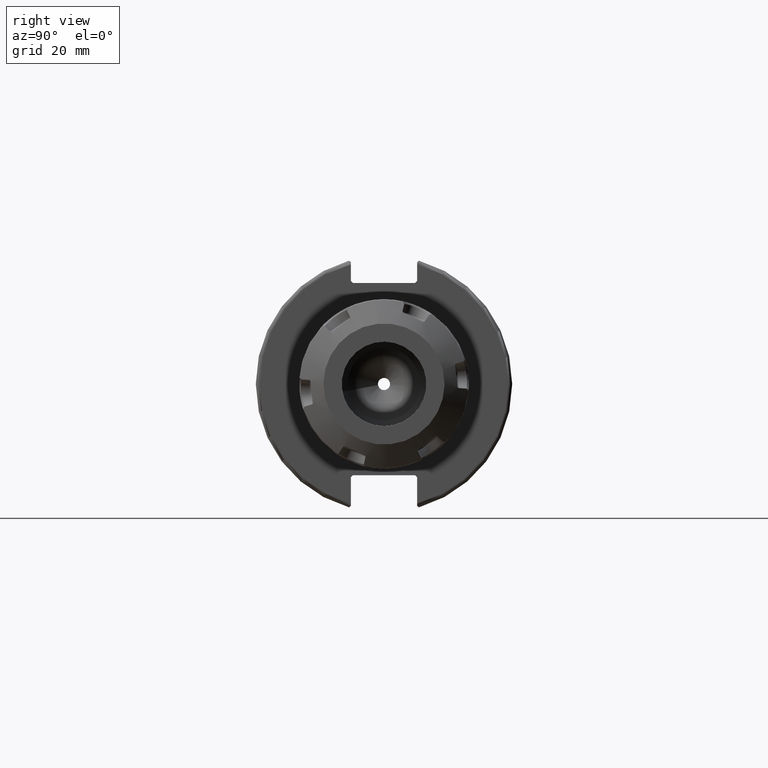
[diagram: clean part render]
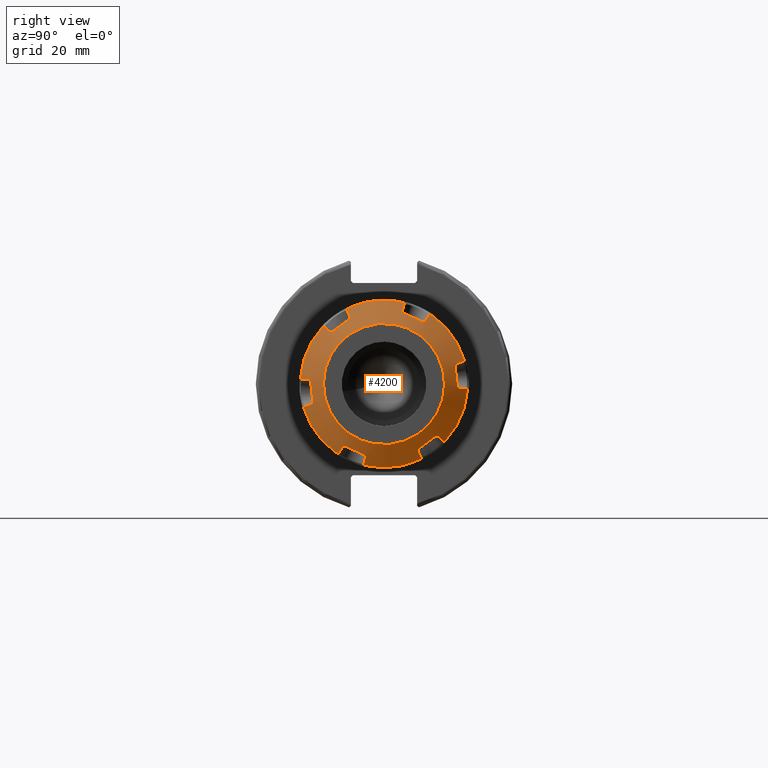
[diagram: same view with one face highlighted and labeled with its STEP entity id]
A machine part, right view. The second image highlights one B-rep face of the part: STEP entity #4200.
In plain terms, the highlighted conical surface has half-angle 60 deg.
Its self-contained STEP definition (entity closure, byte-faithful):
#183=B_SPLINE_CURVE_WITH_KNOTS('',3,(#7151,#7152,#7153,#7154,#7155),
 .UNSPECIFIED.,.F.,.F.,(4,1,4),(0.,0.5,1.),.UNSPECIFIED.);
#184=B_SPLINE_CURVE_WITH_KNOTS('',3,(#7159,#7160,#7161,#7162,#7163,#7164,
#7165,#7166,#7167,#7168),.UNSPECIFIED.,.F.,.F.,(4,2,2,2,4),(0.000528578936882645,
0.0215655882195211,0.0431311764390421,0.0615000722303087,0.0730576288802265),
 .UNSPECIFIED.);
#185=B_SPLINE_CURVE_WITH_KNOTS('',3,(#7170,#7171,#7172,#7173,#7174,#7175,
#7176),.UNSPECIFIED.,.F.,.F.,(4,1,1,1,4),(0.,0.25,0.5,0.75,1.),
 .UNSPECIFIED.);
#186=B_SPLINE_CURVE_WITH_KNOTS('',3,(#7178,#7179,#7180,#7181,#7182,#7183,
#7184,#7185,#7186,#7187),.UNSPECIFIED.,.F.,.F.,(4,2,2,2,4),(0.252069009809256,
0.263626566458915,0.281995462250182,0.303561050469703,0.324598059752141),
 .UNSPECIFIED.);
#187=B_SPLINE_CURVE_WITH_KNOTS('',3,(#7191,#7192,#7193,#7194,#7195),
 .UNSPECIFIED.,.F.,.F.,(4,1,4),(0.,0.5,1.),.UNSPECIFIED.);
#188=B_SPLINE_CURVE_WITH_KNOTS('',3,(#7199,#7200,#7201,#7202,#7203),
 .UNSPECIFIED.,.F.,.F.,(4,1,4),(0.,0.5,1.),.UNSPECIFIED.);
#189=B_SPLINE_CURVE_WITH_KNOTS('',3,(#7207,#7208,#7209,#7210,#7211,#7212,
#7213,#7214,#7215,#7216),.UNSPECIFIED.,.F.,.F.,(4,2,2,2,4),(0.000528578936294754,
0.0215655882195209,0.0431311764390418,0.0615000722303084,0.073057628880325),
 .UNSPECIFIED.);
#190=B_SPLINE_CURVE_WITH_KNOTS('',3,(#7218,#7219,#7220,#7221,#7222,#7223,
#7224),.UNSPECIFIED.,.F.,.F.,(4,1,1,1,4),(0.,0.25,0.5,0.75,1.),
 .UNSPECIFIED.);
#191=B_SPLINE_CURVE_WITH_KNOTS('',3,(#7226,#7227,#7228,#7229,#7230,#7231,
#7232,#7233,#7234,#7235),.UNSPECIFIED.,.F.,.F.,(4,2,2,2,4),(0.252069009808898,
0.263626566458915,0.281995462250181,0.303561050469702,0.324598059752928),
 .UNSPECIFIED.);
#192=B_SPLINE_CURVE_WITH_KNOTS('',3,(#7239,#7240,#7241,#7242,#7243),
 .UNSPECIFIED.,.F.,.F.,(4,1,4),(0.,0.5,1.),.UNSPECIFIED.);
#193=B_SPLINE_CURVE_WITH_KNOTS('',3,(#7247,#7248,#7249,#7250,#7251),
 .UNSPECIFIED.,.F.,.F.,(4,1,4),(0.,0.5,1.),.UNSPECIFIED.);
#194=B_SPLINE_CURVE_WITH_KNOTS('',3,(#7255,#7256,#7257,#7258,#7259,#7260,
#7261,#7262,#7263,#7264),.UNSPECIFIED.,.F.,.F.,(4,2,2,2,4),(0.000528578937082939,
0.021565588219521,0.0431311764390419,0.0615000722303086,0.0730576288799682),
 .UNSPECIFIED.);
#195=B_SPLINE_CURVE_WITH_KNOTS('',3,(#7266,#7267,#7268,#7269,#7270,#7271,
#7272),.UNSPECIFIED.,.F.,.F.,(4,1,1,1,4),(0.,0.25,0.5,0.75,1.),
 .UNSPECIFIED.);
#196=B_SPLINE_CURVE_WITH_KNOTS('',3,(#7274,#7275,#7276,#7277,#7278,#7279,
#7280,#7281,#7282,#7283),.UNSPECIFIED.,.F.,.F.,(4,2,2,2,4),(0.252069009808997,
0.263626566458915,0.281995462250181,0.303561050469702,0.324598059752341),
 .UNSPECIFIED.);
#197=B_SPLINE_CURVE_WITH_KNOTS('',3,(#7287,#7288,#7289,#7290,#7291),
 .UNSPECIFIED.,.F.,.F.,(4,1,4),(0.,0.5,1.),.UNSPECIFIED.);
#198=B_SPLINE_CURVE_WITH_KNOTS('',3,(#7295,#7296,#7297,#7298,#7299),
 .UNSPECIFIED.,.F.,.F.,(4,1,4),(0.,0.5,1.),.UNSPECIFIED.);
#199=B_SPLINE_CURVE_WITH_KNOTS('',3,(#7303,#7304,#7305,#7306,#7307,#7308,
#7309,#7310,#7311,#7312),.UNSPECIFIED.,.F.,.F.,(4,2,2,2,4),(0.000528578936882645,
0.0215655882195211,0.0431311764390421,0.0615000722303087,0.0730576288802265),
 .UNSPECIFIED.);
#200=B_SPLINE_CURVE_WITH_KNOTS('',3,(#7314,#7315,#7316,#7317,#7318,#7319,
#7320),.UNSPECIFIED.,.F.,.F.,(4,1,1,1,4),(0.,0.25,0.5,0.75,1.),
 .UNSPECIFIED.);
#201=B_SPLINE_CURVE_WITH_KNOTS('',3,(#7322,#7323,#7324,#7325,#7326,#7327,
#7328,#7329,#7330,#7331),.UNSPECIFIED.,.F.,.F.,(4,2,2,2,4),(0.252069009809255,
0.263626566458915,0.281995462250182,0.303561050469703,0.324598059752141),
 .UNSPECIFIED.);
#202=B_SPLINE_CURVE_WITH_KNOTS('',3,(#7335,#7336,#7337,#7338,#7339),
 .UNSPECIFIED.,.F.,.F.,(4,1,4),(0.,0.5,1.),.UNSPECIFIED.);
#203=B_SPLINE_CURVE_WITH_KNOTS('',3,(#7343,#7344,#7345,#7346,#7347),
 .UNSPECIFIED.,.F.,.F.,(4,1,4),(0.,0.5,1.),.UNSPECIFIED.);
#204=B_SPLINE_CURVE_WITH_KNOTS('',3,(#7351,#7352,#7353,#7354,#7355,#7356,
#7357,#7358,#7359,#7360),.UNSPECIFIED.,.F.,.F.,(4,2,2,2,4),(0.000528578936294754,
0.0215655882195209,0.0431311764390418,0.0615000722303084,0.0730576288803251),
 .UNSPECIFIED.);
#205=B_SPLINE_CURVE_WITH_KNOTS('',3,(#7362,#7363,#7364,#7365,#7366,#7367,
#7368),.UNSPECIFIED.,.F.,.F.,(4,1,1,1,4),(0.,0.25,0.5,0.75,1.),
 .UNSPECIFIED.);
#206=B_SPLINE_CURVE_WITH_KNOTS('',3,(#7370,#7371,#7372,#7373,#7374,#7375,
#7376,#7377,#7378,#7379),.UNSPECIFIED.,.F.,.F.,(4,2,2,2,4),(0.252069009808898,
0.263626566458915,0.281995462250181,0.303561050469702,0.324598059752928),
 .UNSPECIFIED.);
#207=B_SPLINE_CURVE_WITH_KNOTS('',3,(#7383,#7384,#7385,#7386,#7387),
 .UNSPECIFIED.,.F.,.F.,(4,1,4),(0.,0.5,1.),.UNSPECIFIED.);
#208=B_SPLINE_CURVE_WITH_KNOTS('',3,(#7391,#7392,#7393,#7394,#7395),
 .UNSPECIFIED.,.F.,.F.,(4,1,4),(0.,0.5,1.),.UNSPECIFIED.);
#209=B_SPLINE_CURVE_WITH_KNOTS('',3,(#7399,#7400,#7401,#7402,#7403,#7404,
#7405,#7406,#7407,#7408),.UNSPECIFIED.,.F.,.F.,(4,2,2,2,4),(0.000528578937082939,
0.021565588219521,0.0431311764390419,0.0615000722303086,0.0730576288799681),
 .UNSPECIFIED.);
#210=B_SPLINE_CURVE_WITH_KNOTS('',3,(#7410,#7411,#7412,#7413,#7414,#7415,
#7416),.UNSPECIFIED.,.F.,.F.,(4,1,1,1,4),(0.,0.25,0.5,0.75,1.),
 .UNSPECIFIED.);
#211=B_SPLINE_CURVE_WITH_KNOTS('',3,(#7418,#7419,#7420,#7421,#7422,#7423,
#7424,#7425,#7426,#7427),.UNSPECIFIED.,.F.,.F.,(4,2,2,2,4),(0.252069009808997,
0.263626566458915,0.281995462250181,0.303561050469702,0.324598059752341),
 .UNSPECIFIED.);
#212=B_SPLINE_CURVE_WITH_KNOTS('',3,(#7431,#7432,#7433,#7434,#7435),
 .UNSPECIFIED.,.F.,.F.,(4,1,4),(0.,0.5,1.),.UNSPECIFIED.);
#624=FACE_OUTER_BOUND('',#910,.T.);
#910=EDGE_LOOP('',(#3381,#3382,#3383,#3384,#3385,#3386,#3387,#3388,#3389,
#3390,#3391,#3392,#3393,#3394,#3395,#3396,#3397,#3398,#3399,#3400,#3401,
#3402,#3403,#3404,#3405,#3406,#3407,#3408,#3409,#3410,#3411,#3412,#3413,
#3414,#3415,#3416,#3417,#3418,#3419,#3420,#3421,#3422,#3423,#3424,#3425,
#3426,#3427,#3428,#3429,#3430,#3431,#3432));
#1175=LINE('',#7157,#1427);
#1176=LINE('',#7189,#1428);
#1177=LINE('',#7205,#1429);
#1178=LINE('',#7237,#1430);
#1179=LINE('',#7253,#1431);
#1180=LINE('',#7285,#1432);
#1181=LINE('',#7301,#1433);
#1182=LINE('',#7333,#1434);
#1183=LINE('',#7349,#1435);
#1184=LINE('',#7381,#1436);
#1185=LINE('',#7397,#1437);
#1186=LINE('',#7429,#1438);
#1187=LINE('',#7437,#1439);
#1427=VECTOR('',#5587,10.);
#1428=VECTOR('',#5588,10.);
#1429=VECTOR('',#5591,10.);
#1430=VECTOR('',#5592,10.);
#1431=VECTOR('',#5595,10.);
#1432=VECTOR('',#5596,10.);
#1433=VECTOR('',#5599,10.);
#1434=VECTOR('',#5600,10.);
#1435=VECTOR('',#5603,10.);
#1436=VECTOR('',#5604,10.);
#1437=VECTOR('',#5607,10.);
#1438=VECTOR('',#5608,10.);
#1439=VECTOR('',#5611,17.87499999999);
#1673=CIRCLE('',#4710,15.);
#1674=CIRCLE('',#4712,20.75);
#1675=CIRCLE('',#4713,20.75);
#1676=CIRCLE('',#4714,20.75);
#1677=CIRCLE('',#4715,20.75);
#1678=CIRCLE('',#4716,20.75);
#1679=CIRCLE('',#4717,20.75);
#1680=CIRCLE('',#4718,20.75);
#1990=VERTEX_POINT('',#7144);
#1991=VERTEX_POINT('',#7147);
#1992=VERTEX_POINT('',#7148);
#1993=VERTEX_POINT('',#7150);
#1994=VERTEX_POINT('',#7156);
#1995=VERTEX_POINT('',#7158);
#1996=VERTEX_POINT('',#7169);
#1997=VERTEX_POINT('',#7177);
#1998=VERTEX_POINT('',#7188);
#1999=VERTEX_POINT('',#7190);
#2000=VERTEX_POINT('',#7196);
#2001=VERTEX_POINT('',#7198);
#2002=VERTEX_POINT('',#7204);
#2003=VERTEX_POINT('',#7206);
#2004=VERTEX_POINT('',#7217);
#2005=VERTEX_POINT('',#7225);
#2006=VERTEX_POINT('',#7236);
#2007=VERTEX_POINT('',#7238);
#2008=VERTEX_POINT('',#7244);
#2009=VERTEX_POINT('',#7246);
#2010=VERTEX_POINT('',#7252);
#2011=VERTEX_POINT('',#7254);
#2012=VERTEX_POINT('',#7265);
#2013=VERTEX_POINT('',#7273);
#2014=VERTEX_POINT('',#7284);
#2015=VERTEX_POINT('',#7286);
#2016=VERTEX_POINT('',#7292);
#2017=VERTEX_POINT('',#7294);
#2018=VERTEX_POINT('',#7300);
#2019=VERTEX_POINT('',#7302);
#2020=VERTEX_POINT('',#7313);
#2021=VERTEX_POINT('',#7321);
#2022=VERTEX_POINT('',#7332);
#2023=VERTEX_POINT('',#7334);
#2024=VERTEX_POINT('',#7340);
#2025=VERTEX_POINT('',#7342);
#2026=VERTEX_POINT('',#7348);
#2027=VERTEX_POINT('',#7350);
#2028=VERTEX_POINT('',#7361);
#2029=VERTEX_POINT('',#7369);
#2030=VERTEX_POINT('',#7380);
#2031=VERTEX_POINT('',#7382);
#2032=VERTEX_POINT('',#7388);
#2033=VERTEX_POINT('',#7390);
#2034=VERTEX_POINT('',#7396);
#2035=VERTEX_POINT('',#7398);
#2036=VERTEX_POINT('',#7409);
#2037=VERTEX_POINT('',#7417);
#2038=VERTEX_POINT('',#7428);
#2039=VERTEX_POINT('',#7430);
#2483=EDGE_CURVE('',#1990,#1990,#1673,.T.);
#2484=EDGE_CURVE('',#1991,#1992,#1674,.T.);
#2485=EDGE_CURVE('',#1991,#1993,#183,.T.);
#2486=EDGE_CURVE('',#1994,#1993,#1175,.T.);
#2487=EDGE_CURVE('',#1994,#1995,#184,.T.);
#2488=EDGE_CURVE('',#1996,#1995,#185,.T.);
#2489=EDGE_CURVE('',#1996,#1997,#186,.T.);
#2490=EDGE_CURVE('',#1998,#1997,#1176,.T.);
#2491=EDGE_CURVE('',#1998,#1999,#187,.T.);
#2492=EDGE_CURVE('',#1999,#2000,#1675,.T.);
#2493=EDGE_CURVE('',#2000,#2001,#188,.T.);
#2494=EDGE_CURVE('',#2002,#2001,#1177,.T.);
#2495=EDGE_CURVE('',#2002,#2003,#189,.T.);
#2496=EDGE_CURVE('',#2004,#2003,#190,.T.);
#2497=EDGE_CURVE('',#2004,#2005,#191,.T.);
#2498=EDGE_CURVE('',#2006,#2005,#1178,.T.);
#2499=EDGE_CURVE('',#2006,#2007,#192,.T.);
#2500=EDGE_CURVE('',#2007,#2008,#1676,.T.);
#2501=EDGE_CURVE('',#2008,#2009,#193,.T.);
#2502=EDGE_CURVE('',#2010,#2009,#1179,.T.);
#2503=EDGE_CURVE('',#2010,#2011,#194,.T.);
#2504=EDGE_CURVE('',#2012,#2011,#195,.T.);
#2505=EDGE_CURVE('',#2012,#2013,#196,.T.);
#2506=EDGE_CURVE('',#2014,#2013,#1180,.T.);
#2507=EDGE_CURVE('',#2014,#2015,#197,.T.);
#2508=EDGE_CURVE('',#2016,#2015,#1677,.T.);
#2509=EDGE_CURVE('',#2016,#2017,#198,.T.);
#2510=EDGE_CURVE('',#2018,#2017,#1181,.T.);
#2511=EDGE_CURVE('',#2018,#2019,#199,.T.);
#2512=EDGE_CURVE('',#2020,#2019,#200,.T.);
#2513=EDGE_CURVE('',#2020,#2021,#201,.T.);
#2514=EDGE_CURVE('',#2022,#2021,#1182,.T.);
#2515=EDGE_CURVE('',#2022,#2023,#202,.T.);
#2516=EDGE_CURVE('',#2023,#2024,#1678,.T.);
#2517=EDGE_CURVE('',#2024,#2025,#203,.T.);
#2518=EDGE_CURVE('',#2026,#2025,#1183,.T.);
#2519=EDGE_CURVE('',#2026,#2027,#204,.T.);
#2520=EDGE_CURVE('',#2028,#2027,#205,.T.);
#2521=EDGE_CURVE('',#2028,#2029,#206,.T.);
#2522=EDGE_CURVE('',#2030,#2029,#1184,.T.);
#2523=EDGE_CURVE('',#2030,#2031,#207,.T.);
#2524=EDGE_CURVE('',#2031,#2032,#1679,.T.);
#2525=EDGE_CURVE('',#2032,#2033,#208,.T.);
#2526=EDGE_CURVE('',#2034,#2033,#1185,.T.);
#2527=EDGE_CURVE('',#2034,#2035,#209,.T.);
#2528=EDGE_CURVE('',#2036,#2035,#210,.T.);
#2529=EDGE_CURVE('',#2036,#2037,#211,.T.);
#2530=EDGE_CURVE('',#2038,#2037,#1186,.T.);
#2531=EDGE_CURVE('',#2038,#2039,#212,.T.);
#2532=EDGE_CURVE('',#1992,#2039,#1680,.T.);
#2533=EDGE_CURVE('',#1992,#1990,#1187,.T.);
#3381=ORIENTED_EDGE('',*,*,#2484,.F.);
#3382=ORIENTED_EDGE('',*,*,#2485,.T.);
#3383=ORIENTED_EDGE('',*,*,#2486,.F.);
#3384=ORIENTED_EDGE('',*,*,#2487,.T.);
#3385=ORIENTED_EDGE('',*,*,#2488,.F.);
#3386=ORIENTED_EDGE('',*,*,#2489,.T.);
#3387=ORIENTED_EDGE('',*,*,#2490,.F.);
#3388=ORIENTED_EDGE('',*,*,#2491,.T.);
#3389=ORIENTED_EDGE('',*,*,#2492,.T.);
#3390=ORIENTED_EDGE('',*,*,#2493,.T.);
#3391=ORIENTED_EDGE('',*,*,#2494,.F.);
#3392=ORIENTED_EDGE('',*,*,#2495,.T.);
#3393=ORIENTED_EDGE('',*,*,#2496,.F.);
#3394=ORIENTED_EDGE('',*,*,#2497,.T.);
#3395=ORIENTED_EDGE('',*,*,#2498,.F.);
#3396=ORIENTED_EDGE('',*,*,#2499,.T.);
#3397=ORIENTED_EDGE('',*,*,#2500,.T.);
#3398=ORIENTED_EDGE('',*,*,#2501,.T.);
#3399=ORIENTED_EDGE('',*,*,#2502,.F.);
#3400=ORIENTED_EDGE('',*,*,#2503,.T.);
#3401=ORIENTED_EDGE('',*,*,#2504,.F.);
#3402=ORIENTED_EDGE('',*,*,#2505,.T.);
#3403=ORIENTED_EDGE('',*,*,#2506,.F.);
#3404=ORIENTED_EDGE('',*,*,#2507,.T.);
#3405=ORIENTED_EDGE('',*,*,#2508,.F.);
#3406=ORIENTED_EDGE('',*,*,#2509,.T.);
#3407=ORIENTED_EDGE('',*,*,#2510,.F.);
#3408=ORIENTED_EDGE('',*,*,#2511,.T.);
#3409=ORIENTED_EDGE('',*,*,#2512,.F.);
#3410=ORIENTED_EDGE('',*,*,#2513,.T.);
#3411=ORIENTED_EDGE('',*,*,#2514,.F.);
#3412=ORIENTED_EDGE('',*,*,#2515,.T.);
#3413=ORIENTED_EDGE('',*,*,#2516,.T.);
#3414=ORIENTED_EDGE('',*,*,#2517,.T.);
#3415=ORIENTED_EDGE('',*,*,#2518,.F.);
#3416=ORIENTED_EDGE('',*,*,#2519,.T.);
#3417=ORIENTED_EDGE('',*,*,#2520,.F.);
#3418=ORIENTED_EDGE('',*,*,#2521,.T.);
#3419=ORIENTED_EDGE('',*,*,#2522,.F.);
#3420=ORIENTED_EDGE('',*,*,#2523,.T.);
#3421=ORIENTED_EDGE('',*,*,#2524,.T.);
#3422=ORIENTED_EDGE('',*,*,#2525,.T.);
#3423=ORIENTED_EDGE('',*,*,#2526,.F.);
#3424=ORIENTED_EDGE('',*,*,#2527,.T.);
#3425=ORIENTED_EDGE('',*,*,#2528,.F.);
#3426=ORIENTED_EDGE('',*,*,#2529,.T.);
#3427=ORIENTED_EDGE('',*,*,#2530,.F.);
#3428=ORIENTED_EDGE('',*,*,#2531,.T.);
#3429=ORIENTED_EDGE('',*,*,#2532,.F.);
#3430=ORIENTED_EDGE('',*,*,#2533,.T.);
#3431=ORIENTED_EDGE('',*,*,#2483,.F.);
#3432=ORIENTED_EDGE('',*,*,#2533,.F.);
#4052=CONICAL_SURFACE('',#4711,17.87499999999,1.0471975511966);
#4200=ADVANCED_FACE('',(#624),#4052,.T.);
#4710=AXIS2_PLACEMENT_3D('',#7145,#5581,#5582);
#4711=AXIS2_PLACEMENT_3D('',#7146,#5583,#5584);
#4712=AXIS2_PLACEMENT_3D('',#7149,#5585,#5586);
#4713=AXIS2_PLACEMENT_3D('',#7197,#5589,#5590);
#4714=AXIS2_PLACEMENT_3D('',#7245,#5593,#5594);
#4715=AXIS2_PLACEMENT_3D('',#7293,#5597,#5598);
#4716=AXIS2_PLACEMENT_3D('',#7341,#5601,#5602);
#4717=AXIS2_PLACEMENT_3D('',#7389,#5605,#5606);
#4718=AXIS2_PLACEMENT_3D('',#7436,#5609,#5610);
#5581=DIRECTION('center_axis',(1.,0.,0.));
#5582=DIRECTION('ref_axis',(0.,0.,1.));
#5583=DIRECTION('center_axis',(-1.,0.,0.));
#5584=DIRECTION('ref_axis',(0.,0.,-1.));
#5585=DIRECTION('center_axis',(-1.,0.,0.));
#5586=DIRECTION('ref_axis',(0.,-0.338154383362992,0.941090650794277));
#5587=DIRECTION('',(-0.499985630569931,-0.296200970137599,0.81380547707246));
#5588=DIRECTION('',(0.499985630568637,0.556675731813364,-0.663420303303222));
#5589=DIRECTION('center_axis',(1.,0.,0.));
#5590=DIRECTION('ref_axis',(0.,-0.645931219170366,0.76339561179056));
#5591=DIRECTION('',(-0.4999856305701,-0.852876701952219,0.150385173772302));
#5592=DIRECTION('',(0.4999856305701,0.852876701952219,0.150385173772302));
#5593=DIRECTION('center_axis',(1.,0.,0.));
#5594=DIRECTION('ref_axis',(0.,-0.984085602533375,-0.177695039003695));
#5595=DIRECTION('',(-0.499985630568637,-0.556675731813364,-0.663420303303222));
#5596=DIRECTION('',(0.499985630569931,0.296200970137599,0.81380547707246));
#5597=DIRECTION('center_axis',(-1.,0.,0.));
#5598=DIRECTION('ref_axis',(0.,0.338154383362992,-0.941090650794277));
#5599=DIRECTION('',(-0.499985630569931,0.296200970137599,-0.81380547707246));
#5600=DIRECTION('',(0.499985630568637,-0.556675731813364,0.663420303303222));
#5601=DIRECTION('center_axis',(1.,0.,0.));
#5602=DIRECTION('ref_axis',(0.,0.645931219170366,-0.76339561179056));
#5603=DIRECTION('',(-0.4999856305701,0.852876701952219,-0.150385173772302));
#5604=DIRECTION('',(0.4999856305701,-0.852876701952219,-0.150385173772302));
#5605=DIRECTION('center_axis',(1.,0.,0.));
#5606=DIRECTION('ref_axis',(0.,0.984085602533375,0.177695039003695));
#5607=DIRECTION('',(-0.499985630568637,0.556675731813364,0.663420303303222));
#5608=DIRECTION('',(0.499985630569931,-0.296200970137599,-0.81380547707246));
#5609=DIRECTION('center_axis',(-1.,0.,0.));
#5610=DIRECTION('ref_axis',(0.,-0.338154383362992,0.941090650794277));
#5611=DIRECTION('',(0.5,-1.06057523872491E-16,-0.866025403784439));
#7144=CARTESIAN_POINT('',(10.,0.,15.));
#7145=CARTESIAN_POINT('Origin',(10.,0.,0.));
#7146=CARTESIAN_POINT('Origin',(8.340117976085,0.,0.));
#7147=CARTESIAN_POINT('',(6.68023595216,-7.016703454783,19.52763100398));
#7148=CARTESIAN_POINT('',(6.68023595215821,2.54114210823094E-15,20.7500000000015));
#7149=CARTESIAN_POINT('Origin',(6.68023595216,0.,0.));
#7150=CARTESIAN_POINT('',(6.825682591738,-7.171427942968,19.20265255629));
#7151=CARTESIAN_POINT('Ctrl Pts',(6.68023595216,-7.016703454783,19.52763100398));
#7152=CARTESIAN_POINT('Ctrl Pts',(6.704787157248,-7.042656692872,19.47311963913));
#7153=CARTESIAN_POINT('Ctrl Pts',(6.753579391822,-7.094397359189,19.36444517125));
#7154=CARTESIAN_POINT('Ctrl Pts',(6.801751497951,-7.145806366539,19.25646730943));
#7155=CARTESIAN_POINT('Ctrl Pts',(6.825682591738,-7.171427942968,19.20265255629));
#7156=CARTESIAN_POINT('',(7.882383512005,-6.545418276707,17.48270513388));
#7157=CARTESIAN_POINT('',(7.882383512005,-6.545418276707,17.48270513388));
#7158=CARTESIAN_POINT('',(8.161702976639,-6.7652645871,16.87868236033));
#7159=CARTESIAN_POINT('Ctrl Pts',(7.88238351200488,-6.5454182767061,17.4827051338802));
#7160=CARTESIAN_POINT('Ctrl Pts',(7.91757308100159,-6.52457123031395,17.4254283446545));
#7161=CARTESIAN_POINT('Ctrl Pts',(7.9552484221707,-6.51324235909714,17.3600045332163));
#7162=CARTESIAN_POINT('Ctrl Pts',(8.02648755858909,-6.51797087692523,17.2263665624065));
#7163=CARTESIAN_POINT('Ctrl Pts',(8.05991393278653,-6.53477525858298,17.1581081869268));
#7164=CARTESIAN_POINT('Ctrl Pts',(8.10920621105696,-6.58768370146919,17.0463470263659));
#7165=CARTESIAN_POINT('Ctrl Pts',(8.12973777953577,-6.62383045448549,16.9942231906329));
#7166=CARTESIAN_POINT('Ctrl Pts',(8.15229926979325,-6.69836013981006,16.9229037408109));
#7167=CARTESIAN_POINT('Ctrl Pts',(8.15844945494287,-6.73087400881105,16.8985377699606));
#7168=CARTESIAN_POINT('Ctrl Pts',(8.16170297663675,-6.7652645870992,16.8786823603282));
#7169=CARTESIAN_POINT('',(8.161702976639,-11.2347354129,14.29823217591));
#7170=CARTESIAN_POINT('Ctrl Pts',(8.161702976639,-11.2347354129,14.29823217591));
#7171=CARTESIAN_POINT('Ctrl Pts',(8.196946708672,-10.86219991454,14.51331564618));
#7172=CARTESIAN_POINT('Ctrl Pts',(8.250134664999,-10.11721577476,14.94343243982));
#7173=CARTESIAN_POINT('Ctrl Pts',(8.276856688426,-8.999986418851,15.5884651092));
#7174=CARTESIAN_POINT('Ctrl Pts',(8.250133735868,-7.882770110197,16.23349024574));
#7175=CARTESIAN_POINT('Ctrl Pts',(8.196946175203,-7.137794446555,16.66360214569));
#7176=CARTESIAN_POINT('Ctrl Pts',(8.161702976639,-6.7652645871,16.87868236033));
#7177=CARTESIAN_POINT('',(7.882383512005,-11.86775763446,14.40985107296));
#7178=CARTESIAN_POINT('Ctrl Pts',(8.16170297663636,-11.2347354129032,14.2982321759159));
#7179=CARTESIAN_POINT('Ctrl Pts',(8.15844945494243,-11.2691259911908,14.2783767662844));
#7180=CARTESIAN_POINT('Ctrl Pts',(8.15229926979289,-11.3064844754347,14.2624019151798));
#7181=CARTESIAN_POINT('Ctrl Pts',(8.1297377795356,-11.4055137734259,14.233517039264));
#7182=CARTESIAN_POINT('Ctrl Pts',(8.10920621105679,-11.4687277158215,14.228274950754));
#7183=CARTESIAN_POINT('Ctrl Pts',(8.05991393278637,-11.5919699414668,14.2383354754203));
#7184=CARTESIAN_POINT('Ctrl Pts',(8.02648755858892,-11.6594856194821,14.2579116417497));
#7185=CARTESIAN_POINT('Ctrl Pts',(7.95524842217086,-11.7775837560271,14.3206356105929));
#7186=CARTESIAN_POINT('Ctrl Pts',(7.91757308100213,-11.8285780031362,14.3631586065815));
#7187=CARTESIAN_POINT('Ctrl Pts',(7.88238351200571,-11.8677576344567,14.4098510729634));
#7188=CARTESIAN_POINT('',(6.825682591738,-13.04427096231,15.81196505817));
#7189=CARTESIAN_POINT('',(6.825682591738,-13.04427096231,15.81196505817));
#7190=CARTESIAN_POINT('',(6.68023595216,-13.40307279778,15.84045894465));
#7191=CARTESIAN_POINT('Ctrl Pts',(6.825682591738,-13.04427096231,15.81196505817));
#7192=CARTESIAN_POINT('Ctrl Pts',(6.801772251375,-13.10363516757,15.81667940675));
#7193=CARTESIAN_POINT('Ctrl Pts',(6.753621129435,-13.22279980844,15.82614274672));
#7194=CARTESIAN_POINT('Ctrl Pts',(6.704808138864,-13.34283651763,15.83567534112));
#7195=CARTESIAN_POINT('Ctrl Pts',(6.68023595216,-13.40307279778,15.84045894465));
#7196=CARTESIAN_POINT('',(6.68023595216,-20.41977625257,3.687172059327));
#7197=CARTESIAN_POINT('Origin',(6.68023595216,0.,0.));
#7198=CARTESIAN_POINT('',(6.825682591738,-20.21569890528,3.390687498127));
#7199=CARTESIAN_POINT('Ctrl Pts',(6.68023595216,-20.41977625257,3.687172059327));
#7200=CARTESIAN_POINT('Ctrl Pts',(6.704799687283,-20.3855271743,3.637414832095));
#7201=CARTESIAN_POINT('Ctrl Pts',(6.753604317172,-20.31726515581,3.538243440133));
#7202=CARTESIAN_POINT('Ctrl Pts',(6.801763891711,-20.2494755586,3.439758384099));
#7203=CARTESIAN_POINT('Ctrl Pts',(6.825682591738,-20.21569890528,3.390687498127));
#7204=CARTESIAN_POINT('',(7.882383512005,-18.41317591117,3.072854060917));
#7205=CARTESIAN_POINT('',(7.882383512005,-18.41317591117,3.072854060917));
#7206=CARTESIAN_POINT('',(8.161702976639,-18.,2.580450184411));
#7207=CARTESIAN_POINT('Ctrl Pts',(7.88238351200324,-18.4131759111689,3.07285406091752));
#7208=CARTESIAN_POINT('Ctrl Pts',(7.91757308100079,-18.3531492334545,3.06226973807448));
#7209=CARTESIAN_POINT('Ctrl Pts',(7.95524842217103,-18.2908261151263,3.03936892262507));
#7210=CARTESIAN_POINT('Ctrl Pts',(8.0264875585904,-18.1774564964073,2.96845492065783));
#7211=CARTESIAN_POINT('Ctrl Pts',(8.05991393278785,-18.1267452000497,2.91977271150746));
#7212=CARTESIAN_POINT('Ctrl Pts',(8.10920621105827,-18.0564114172907,2.8180720756129));
#7213=CARTESIAN_POINT('Ctrl Pts',(8.12973777953708,-18.0293442279114,2.76070615136998));
#7214=CARTESIAN_POINT('Ctrl Pts',(8.15229926979464,-18.0048446152438,2.6605018256315));
#7215=CARTESIAN_POINT('Ctrl Pts',(8.15844945494429,-18.,2.6201610036758));
#7216=CARTESIAN_POINT('Ctrl Pts',(8.16170297663815,-18.,2.58045018441093));
#7217=CARTESIAN_POINT('',(8.161702976639,-18.,-2.580450184411));
#7218=CARTESIAN_POINT('Ctrl Pts',(8.161702976639,-18.,-2.580450184411));
#7219=CARTESIAN_POINT('Ctrl Pts',(8.196946701397,-18.,-2.150283332677));
#7220=CARTESIAN_POINT('Ctrl Pts',(8.250134657495,-18.,-1.290049848268));
#7221=CARTESIAN_POINT('Ctrl Pts',(8.276856692047,-18.,1.567320733414E-5));
#7222=CARTESIAN_POINT('Ctrl Pts',(8.250133728888,-18.,1.290066137805));
#7223=CARTESIAN_POINT('Ctrl Pts',(8.196946168226,-18.,2.150289840288));
#7224=CARTESIAN_POINT('Ctrl Pts',(8.161702976639,-18.,2.580450184411));
#7225=CARTESIAN_POINT('',(7.882383512005,-18.41317591117,-3.072854060917));
#7226=CARTESIAN_POINT('Ctrl Pts',(8.16170297663815,-18.,-2.58045018441093));
#7227=CARTESIAN_POINT('Ctrl Pts',(8.15844945494429,-18.,-2.6201610036758));
#7228=CARTESIAN_POINT('Ctrl Pts',(8.15229926979464,-18.0048446152438,-2.6605018256315));
#7229=CARTESIAN_POINT('Ctrl Pts',(8.12973777953708,-18.0293442279114,-2.76070615136998));
#7230=CARTESIAN_POINT('Ctrl Pts',(8.10920621105827,-18.0564114172907,-2.8180720756129));
#7231=CARTESIAN_POINT('Ctrl Pts',(8.05991393278785,-18.1267452000497,-2.91977271150746));
#7232=CARTESIAN_POINT('Ctrl Pts',(8.0264875585904,-18.1774564964073,-2.96845492065783));
#7233=CARTESIAN_POINT('Ctrl Pts',(7.95524842217103,-18.2908261151263,-3.03936892262507));
#7234=CARTESIAN_POINT('Ctrl Pts',(7.91757308100079,-18.3531492334545,-3.06226973807448));
#7235=CARTESIAN_POINT('Ctrl Pts',(7.88238351200324,-18.4131759111689,-3.07285406091752));
#7236=CARTESIAN_POINT('',(6.825682591738,-20.21569890528,-3.390687498127));
#7237=CARTESIAN_POINT('',(6.825682591738,-20.21569890528,-3.390687498127));
#7238=CARTESIAN_POINT('',(6.68023595216,-20.41977625257,-3.687172059327));
#7239=CARTESIAN_POINT('Ctrl Pts',(6.825682591738,-20.21569890528,-3.390687498127));
#7240=CARTESIAN_POINT('Ctrl Pts',(6.801802913228,-20.24942045459,-3.439678328728));
#7241=CARTESIAN_POINT('Ctrl Pts',(6.753682793811,-20.31715504619,-3.538083472348));
#7242=CARTESIAN_POINT('Ctrl Pts',(6.704839137855,-20.38547216859,-3.637334919529));
#7243=CARTESIAN_POINT('Ctrl Pts',(6.68023595216,-20.41977625257,-3.687172059327));
#7244=CARTESIAN_POINT('',(6.68023595216,-13.40307279778,-15.84045894465));
#7245=CARTESIAN_POINT('Origin',(6.68023595216,0.,0.));
#7246=CARTESIAN_POINT('',(6.825682591738,-13.04427096231,-15.81196505817));
#7247=CARTESIAN_POINT('Ctrl Pts',(6.68023595216,-13.40307279778,-15.84045894465));
#7248=CARTESIAN_POINT('Ctrl Pts',(6.704867770063,-13.34269033766,-15.83566373238));
#7249=CARTESIAN_POINT('Ctrl Pts',(6.753739749803,-13.2225071874,-15.82611950852));
#7250=CARTESIAN_POINT('Ctrl Pts',(6.801831234037,-13.10348872638,-15.81666777727));
#7251=CARTESIAN_POINT('Ctrl Pts',(6.825682591738,-13.04427096231,-15.81196505817));
#7252=CARTESIAN_POINT('',(7.882383512005,-11.86775763446,-14.40985107296));
#7253=CARTESIAN_POINT('',(7.882383512005,-11.86775763446,-14.40985107296));
#7254=CARTESIAN_POINT('',(8.161702976639,-11.2347354129,-14.29823217591));
#7255=CARTESIAN_POINT('Ctrl Pts',(7.88238351200571,-11.8677576344567,-14.4098510729634));
#7256=CARTESIAN_POINT('Ctrl Pts',(7.91757308100214,-11.8285780031362,-14.3631586065815));
#7257=CARTESIAN_POINT('Ctrl Pts',(7.95524842217086,-11.7775837560271,-14.3206356105929));
#7258=CARTESIAN_POINT('Ctrl Pts',(8.02648755858892,-11.6594856194821,-14.2579116417497));
#7259=CARTESIAN_POINT('Ctrl Pts',(8.05991393278637,-11.5919699414668,-14.2383354754203));
#7260=CARTESIAN_POINT('Ctrl Pts',(8.10920621105679,-11.4687277158215,-14.228274950754));
#7261=CARTESIAN_POINT('Ctrl Pts',(8.1297377795356,-11.4055137734259,-14.233517039264));
#7262=CARTESIAN_POINT('Ctrl Pts',(8.15229926979289,-11.3064844754347,-14.2624019151798));
#7263=CARTESIAN_POINT('Ctrl Pts',(8.15844945494243,-11.2691259911908,-14.2783767662844));
#7264=CARTESIAN_POINT('Ctrl Pts',(8.16170297663636,-11.2347354129032,-14.2982321759159));
#7265=CARTESIAN_POINT('',(8.161702976639,-6.7652645871,-16.87868236033));
#7266=CARTESIAN_POINT('Ctrl Pts',(8.161702976639,-6.7652645871,-16.87868236033));
#7267=CARTESIAN_POINT('Ctrl Pts',(8.196946701402,-7.137800008619,-16.66359893443));
#7268=CARTESIAN_POINT('Ctrl Pts',(8.2501346575,-7.882784059363,-16.23348219219));
#7269=CARTESIAN_POINT('Ctrl Pts',(8.276856692044,-9.000013573401,-15.58844943151));
#7270=CARTESIAN_POINT('Ctrl Pts',(8.250133728893,-10.1172300478,-14.94342419928));
#7271=CARTESIAN_POINT('Ctrl Pts',(8.196946168231,-10.86220562714,-14.513312348));
#7272=CARTESIAN_POINT('Ctrl Pts',(8.161702976639,-11.2347354129,-14.29823217591));
#7273=CARTESIAN_POINT('',(7.882383512005,-6.545418276707,-17.48270513388));
#7274=CARTESIAN_POINT('Ctrl Pts',(8.16170297663675,-6.7652645870992,-16.8786823603282));
#7275=CARTESIAN_POINT('Ctrl Pts',(8.15844945494287,-6.73087400881105,-16.8985377699606));
#7276=CARTESIAN_POINT('Ctrl Pts',(8.15229926979325,-6.69836013981006,-16.9229037408109));
#7277=CARTESIAN_POINT('Ctrl Pts',(8.12973777953577,-6.62383045448549,-16.9942231906329));
#7278=CARTESIAN_POINT('Ctrl Pts',(8.10920621105696,-6.58768370146919,-17.0463470263659));
#7279=CARTESIAN_POINT('Ctrl Pts',(8.05991393278654,-6.53477525858298,-17.1581081869268));
#7280=CARTESIAN_POINT('Ctrl Pts',(8.02648755858909,-6.51797087692523,-17.2263665624065));
#7281=CARTESIAN_POINT('Ctrl Pts',(7.9552484221707,-6.51324235909713,-17.3600045332163));
#7282=CARTESIAN_POINT('Ctrl Pts',(7.91757308100158,-6.52457123031395,-17.4254283446545));
#7283=CARTESIAN_POINT('Ctrl Pts',(7.88238351200488,-6.54541827670611,-17.4827051338803));
#7284=CARTESIAN_POINT('',(6.825682591738,-7.171427942968,-19.20265255629));
#7285=CARTESIAN_POINT('',(6.825682591738,-7.171427942968,-19.20265255629));
#7286=CARTESIAN_POINT('',(6.68023595216,-7.016703454783,-19.52763100398));
#7287=CARTESIAN_POINT('Ctrl Pts',(6.825682591738,-7.171427942968,-19.20265255629));
#7288=CARTESIAN_POINT('Ctrl Pts',(6.801800169484,-7.14585847621,-19.25635785991));
#7289=CARTESIAN_POINT('Ctrl Pts',(6.753677275852,-7.094501485456,-19.36422646771));
#7290=CARTESIAN_POINT('Ctrl Pts',(6.704836363943,-7.042708709589,-19.47301038486));
#7291=CARTESIAN_POINT('Ctrl Pts',(6.68023595216,-7.016703454783,-19.52763100398));
#7292=CARTESIAN_POINT('',(6.68023595216,7.016703454783,-19.52763100398));
#7293=CARTESIAN_POINT('Origin',(6.68023595216,0.,0.));
#7294=CARTESIAN_POINT('',(6.825682591738,7.171427942968,-19.20265255629));
#7295=CARTESIAN_POINT('Ctrl Pts',(6.68023595216,7.016703454783,-19.52763100398));
#7296=CARTESIAN_POINT('Ctrl Pts',(6.704868951557,7.042743158167,-19.47293803015));
#7297=CARTESIAN_POINT('Ctrl Pts',(6.75374210006,7.094570444169,-19.364081629));
#7298=CARTESIAN_POINT('Ctrl Pts',(6.801832402682,7.145892986348,-19.25628537591));
#7299=CARTESIAN_POINT('Ctrl Pts',(6.825682591738,7.171427942968,-19.20265255629));
#7300=CARTESIAN_POINT('',(7.882383512005,6.545418276707,-17.48270513388));
#7301=CARTESIAN_POINT('',(7.882383512005,6.545418276707,-17.48270513388));
#7302=CARTESIAN_POINT('',(8.161702976639,6.7652645871,-16.87868236033));
#7303=CARTESIAN_POINT('Ctrl Pts',(7.88238351200488,6.5454182767061,-17.4827051338802));
#7304=CARTESIAN_POINT('Ctrl Pts',(7.91757308100159,6.52457123031395,-17.4254283446545));
#7305=CARTESIAN_POINT('Ctrl Pts',(7.9552484221707,6.51324235909714,-17.3600045332163));
#7306=CARTESIAN_POINT('Ctrl Pts',(8.02648755858909,6.51797087692523,-17.2263665624065));
#7307=CARTESIAN_POINT('Ctrl Pts',(8.05991393278653,6.53477525858298,-17.1581081869268));
#7308=CARTESIAN_POINT('Ctrl Pts',(8.10920621105696,6.58768370146919,-17.0463470263659));
#7309=CARTESIAN_POINT('Ctrl Pts',(8.12973777953577,6.62383045448549,-16.9942231906329));
#7310=CARTESIAN_POINT('Ctrl Pts',(8.15229926979325,6.69836013981006,-16.9229037408109));
#7311=CARTESIAN_POINT('Ctrl Pts',(8.15844945494287,6.73087400881105,-16.8985377699606));
#7312=CARTESIAN_POINT('Ctrl Pts',(8.16170297663675,6.7652645870992,-16.8786823603282));
#7313=CARTESIAN_POINT('',(8.161702976639,11.2347354129,-14.29823217591));
#7314=CARTESIAN_POINT('Ctrl Pts',(8.161702976639,11.2347354129,-14.29823217591));
#7315=CARTESIAN_POINT('Ctrl Pts',(8.196946701402,10.86219999138,-14.51331560181));
#7316=CARTESIAN_POINT('Ctrl Pts',(8.2501346575,10.11721594064,-14.94343234405));
#7317=CARTESIAN_POINT('Ctrl Pts',(8.276856692044,8.999986426599,-15.58846510473));
#7318=CARTESIAN_POINT('Ctrl Pts',(8.250133728893,7.882769952205,-16.23349033696));
#7319=CARTESIAN_POINT('Ctrl Pts',(8.196946168231,7.137794372861,-16.66360218824));
#7320=CARTESIAN_POINT('Ctrl Pts',(8.161702976639,6.7652645871,-16.87868236033));
#7321=CARTESIAN_POINT('',(7.882383512005,11.86775763446,-14.40985107296));
#7322=CARTESIAN_POINT('Ctrl Pts',(8.16170297663636,11.2347354129032,-14.2982321759159));
#7323=CARTESIAN_POINT('Ctrl Pts',(8.15844945494243,11.2691259911908,-14.2783767662844));
#7324=CARTESIAN_POINT('Ctrl Pts',(8.15229926979289,11.3064844754347,-14.2624019151798));
#7325=CARTESIAN_POINT('Ctrl Pts',(8.1297377795356,11.4055137734259,-14.233517039264));
#7326=CARTESIAN_POINT('Ctrl Pts',(8.10920621105679,11.4687277158215,-14.228274950754));
#7327=CARTESIAN_POINT('Ctrl Pts',(8.05991393278637,11.5919699414668,-14.2383354754203));
#7328=CARTESIAN_POINT('Ctrl Pts',(8.02648755858892,11.6594856194821,-14.2579116417497));
#7329=CARTESIAN_POINT('Ctrl Pts',(7.95524842217086,11.7775837560271,-14.3206356105929));
#7330=CARTESIAN_POINT('Ctrl Pts',(7.91757308100214,11.8285780031362,-14.3631586065815));
#7331=CARTESIAN_POINT('Ctrl Pts',(7.88238351200571,11.8677576344567,-14.4098510729634));
#7332=CARTESIAN_POINT('',(6.825682591738,13.04427096231,-15.81196505817));
#7333=CARTESIAN_POINT('',(6.825682591738,13.04427096231,-15.81196505817));
#7334=CARTESIAN_POINT('',(6.68023595216,13.40307279778,-15.84045894465));
#7335=CARTESIAN_POINT('Ctrl Pts',(6.825682591738,13.04427096231,-15.81196505817));
#7336=CARTESIAN_POINT('Ctrl Pts',(6.801787224387,13.10359799282,-15.81667645456));
#7337=CARTESIAN_POINT('Ctrl Pts',(6.753651241858,13.22272552533,-15.8261368476));
#7338=CARTESIAN_POINT('Ctrl Pts',(6.70482327651,13.34279940919,-15.83567239419));
#7339=CARTESIAN_POINT('Ctrl Pts',(6.68023595216,13.40307279778,-15.84045894465));
#7340=CARTESIAN_POINT('',(6.68023595216,20.41977625257,-3.687172059327));
#7341=CARTESIAN_POINT('Origin',(6.68023595216,0.,0.));
#7342=CARTESIAN_POINT('',(6.825682591738,20.21569890528,-3.390687498127));
#7343=CARTESIAN_POINT('Ctrl Pts',(6.68023595216,20.41977625257,-3.687172059327));
#7344=CARTESIAN_POINT('Ctrl Pts',(6.704779833101,20.38555485687,-3.637455049474));
#7345=CARTESIAN_POINT('Ctrl Pts',(6.753564822252,20.31732057033,-3.538323946616));
#7346=CARTESIAN_POINT('Ctrl Pts',(6.80174425346,20.24950329064,-3.439798673345));
#7347=CARTESIAN_POINT('Ctrl Pts',(6.825682591738,20.21569890528,-3.390687498127));
#7348=CARTESIAN_POINT('',(7.882383512005,18.41317591117,-3.072854060917));
#7349=CARTESIAN_POINT('',(7.882383512005,18.41317591117,-3.072854060917));
#7350=CARTESIAN_POINT('',(8.161702976639,18.,-2.580450184411));
#7351=CARTESIAN_POINT('Ctrl Pts',(7.88238351200324,18.4131759111689,-3.07285406091752));
#7352=CARTESIAN_POINT('Ctrl Pts',(7.91757308100079,18.3531492334545,-3.06226973807448));
#7353=CARTESIAN_POINT('Ctrl Pts',(7.95524842217103,18.2908261151263,-3.03936892262507));
#7354=CARTESIAN_POINT('Ctrl Pts',(8.0264875585904,18.1774564964073,-2.96845492065783));
#7355=CARTESIAN_POINT('Ctrl Pts',(8.05991393278785,18.1267452000497,-2.91977271150746));
#7356=CARTESIAN_POINT('Ctrl Pts',(8.10920621105827,18.0564114172907,-2.8180720756129));
#7357=CARTESIAN_POINT('Ctrl Pts',(8.12973777953708,18.0293442279114,-2.76070615136998));
#7358=CARTESIAN_POINT('Ctrl Pts',(8.15229926979464,18.0048446152438,-2.6605018256315));
#7359=CARTESIAN_POINT('Ctrl Pts',(8.15844945494429,18.,-2.6201610036758));
#7360=CARTESIAN_POINT('Ctrl Pts',(8.16170297663815,18.,-2.58045018441093));
#7361=CARTESIAN_POINT('',(8.161702976639,18.,2.580450184411));
#7362=CARTESIAN_POINT('Ctrl Pts',(8.161702976639,18.,2.580450184411));
#7363=CARTESIAN_POINT('Ctrl Pts',(8.196946701402,18.,2.150283332617));
#7364=CARTESIAN_POINT('Ctrl Pts',(8.2501346575,18.,1.29004984814));
#7365=CARTESIAN_POINT('Ctrl Pts',(8.276856692044,18.,-1.567321333185E-5));
#7366=CARTESIAN_POINT('Ctrl Pts',(8.250133728893,18.,-1.290066137683));
#7367=CARTESIAN_POINT('Ctrl Pts',(8.196946168231,18.,-2.150289840231));
#7368=CARTESIAN_POINT('Ctrl Pts',(8.161702976639,18.,-2.580450184411));
#7369=CARTESIAN_POINT('',(7.882383512005,18.41317591117,3.072854060917));
#7370=CARTESIAN_POINT('Ctrl Pts',(8.16170297663814,18.,2.58045018441093));
#7371=CARTESIAN_POINT('Ctrl Pts',(8.15844945494429,18.,2.6201610036758));
#7372=CARTESIAN_POINT('Ctrl Pts',(8.15229926979464,18.0048446152438,2.6605018256315));
#7373=CARTESIAN_POINT('Ctrl Pts',(8.12973777953708,18.0293442279114,2.76070615136998));
#7374=CARTESIAN_POINT('Ctrl Pts',(8.10920621105827,18.0564114172907,2.8180720756129));
#7375=CARTESIAN_POINT('Ctrl Pts',(8.05991393278785,18.1267452000497,2.91977271150746));
#7376=CARTESIAN_POINT('Ctrl Pts',(8.0264875585904,18.1774564964073,2.96845492065782));
#7377=CARTESIAN_POINT('Ctrl Pts',(7.95524842217103,18.2908261151263,3.03936892262507));
#7378=CARTESIAN_POINT('Ctrl Pts',(7.91757308100079,18.3531492334545,3.06226973807448));
#7379=CARTESIAN_POINT('Ctrl Pts',(7.88238351200324,18.4131759111689,3.07285406091752));
#7380=CARTESIAN_POINT('',(6.825682591738,20.21569890528,3.390687498127));
#7381=CARTESIAN_POINT('',(6.825682591738,20.21569890528,3.390687498127));
#7382=CARTESIAN_POINT('',(6.68023595216,20.41977625257,3.687172059327));
#7383=CARTESIAN_POINT('Ctrl Pts',(6.825682591738,20.21569890528,3.390687498127));
#7384=CARTESIAN_POINT('Ctrl Pts',(6.801781318687,20.2494509492,3.439722631439));
#7385=CARTESIAN_POINT('Ctrl Pts',(6.753639364836,20.31721598097,3.538171998679));
#7386=CARTESIAN_POINT('Ctrl Pts',(6.704817305874,20.3855026088,3.637379143212));
#7387=CARTESIAN_POINT('Ctrl Pts',(6.68023595216,20.41977625257,3.687172059327));
#7388=CARTESIAN_POINT('',(6.68023595216,13.40307279778,15.84045894465));
#7389=CARTESIAN_POINT('Origin',(6.68023595216,0.,0.));
#7390=CARTESIAN_POINT('',(6.825682591738,13.04427096231,15.81196505817));
#7391=CARTESIAN_POINT('Ctrl Pts',(6.68023595216,13.40307279778,15.84045894465));
#7392=CARTESIAN_POINT('Ctrl Pts',(6.70480460785,13.34284517356,15.83567602852));
#7393=CARTESIAN_POINT('Ctrl Pts',(6.753614105388,13.22281713574,15.82614412275));
#7394=CARTESIAN_POINT('Ctrl Pts',(6.801768758764,13.10364383897,15.81668009538));
#7395=CARTESIAN_POINT('Ctrl Pts',(6.825682591738,13.04427096231,15.81196505817));
#7396=CARTESIAN_POINT('',(7.882383512005,11.86775763446,14.40985107296));
#7397=CARTESIAN_POINT('',(7.882383512005,11.86775763446,14.40985107296));
#7398=CARTESIAN_POINT('',(8.161702976639,11.2347354129,14.29823217591));
#7399=CARTESIAN_POINT('Ctrl Pts',(7.88238351200571,11.8677576344567,14.4098510729634));
#7400=CARTESIAN_POINT('Ctrl Pts',(7.91757308100213,11.8285780031362,14.3631586065815));
#7401=CARTESIAN_POINT('Ctrl Pts',(7.95524842217086,11.7775837560271,14.3206356105929));
#7402=CARTESIAN_POINT('Ctrl Pts',(8.02648755858892,11.6594856194821,14.2579116417497));
#7403=CARTESIAN_POINT('Ctrl Pts',(8.05991393278637,11.5919699414668,14.2383354754203));
#7404=CARTESIAN_POINT('Ctrl Pts',(8.10920621105679,11.4687277158215,14.228274950754));
#7405=CARTESIAN_POINT('Ctrl Pts',(8.1297377795356,11.4055137734259,14.233517039264));
#7406=CARTESIAN_POINT('Ctrl Pts',(8.15229926979289,11.3064844754347,14.2624019151798));
#7407=CARTESIAN_POINT('Ctrl Pts',(8.15844945494243,11.2691259911908,14.2783767662844));
#7408=CARTESIAN_POINT('Ctrl Pts',(8.16170297663636,11.2347354129032,14.2982321759159));
#7409=CARTESIAN_POINT('',(8.161702976639,6.7652645871,16.87868236033));
#7410=CARTESIAN_POINT('Ctrl Pts',(8.161702976639,6.7652645871,16.87868236033));
#7411=CARTESIAN_POINT('Ctrl Pts',(8.196946708672,7.137800085464,16.66359889006));
#7412=CARTESIAN_POINT('Ctrl Pts',(8.250134664999,7.882784225241,16.23348209642));
#7413=CARTESIAN_POINT('Ctrl Pts',(8.276856688426,9.000013581149,15.58844942704));
#7414=CARTESIAN_POINT('Ctrl Pts',(8.250133735868,10.1172298898,14.9434242905));
#7415=CARTESIAN_POINT('Ctrl Pts',(8.196946175203,10.86220555345,14.51331239055));
#7416=CARTESIAN_POINT('Ctrl Pts',(8.161702976639,11.2347354129,14.29823217591));
#7417=CARTESIAN_POINT('',(7.882383512005,6.545418276707,17.48270513388));
#7418=CARTESIAN_POINT('Ctrl Pts',(8.16170297663675,6.7652645870992,16.8786823603282));
#7419=CARTESIAN_POINT('Ctrl Pts',(8.15844945494287,6.73087400881105,16.8985377699606));
#7420=CARTESIAN_POINT('Ctrl Pts',(8.15229926979325,6.69836013981006,16.9229037408109));
#7421=CARTESIAN_POINT('Ctrl Pts',(8.12973777953577,6.62383045448549,16.9942231906329));
#7422=CARTESIAN_POINT('Ctrl Pts',(8.10920621105696,6.58768370146919,17.0463470263659));
#7423=CARTESIAN_POINT('Ctrl Pts',(8.05991393278654,6.53477525858298,17.1581081869268));
#7424=CARTESIAN_POINT('Ctrl Pts',(8.02648755858909,6.51797087692523,17.2263665624065));
#7425=CARTESIAN_POINT('Ctrl Pts',(7.9552484221707,6.51324235909713,17.3600045332163));
#7426=CARTESIAN_POINT('Ctrl Pts',(7.91757308100158,6.52457123031395,17.4254283446545));
#7427=CARTESIAN_POINT('Ctrl Pts',(7.88238351200488,6.54541827670611,17.4827051338803));
#7428=CARTESIAN_POINT('',(6.825682591738,7.171427942968,19.20265255629));
#7429=CARTESIAN_POINT('',(6.825682591738,7.171427942968,19.20265255629));
#7430=CARTESIAN_POINT('',(6.68023595216,7.016703454783,19.52763100398));
#7431=CARTESIAN_POINT('Ctrl Pts',(6.825682591738,7.171427942968,19.20265255629));
#7432=CARTESIAN_POINT('Ctrl Pts',(6.801780244578,7.145837143817,19.2564026658));
#7433=CARTESIAN_POINT('Ctrl Pts',(6.753637204681,7.094458858754,19.3643159995));
#7434=CARTESIAN_POINT('Ctrl Pts',(6.704816219955,7.042687415248,19.47305511082));
#7435=CARTESIAN_POINT('Ctrl Pts',(6.68023595216,7.016703454783,19.52763100398));
#7436=CARTESIAN_POINT('Origin',(6.68023595216,0.,0.));
#7437=CARTESIAN_POINT('',(8.340117976085,2.18905615347467E-15,17.87499999999));